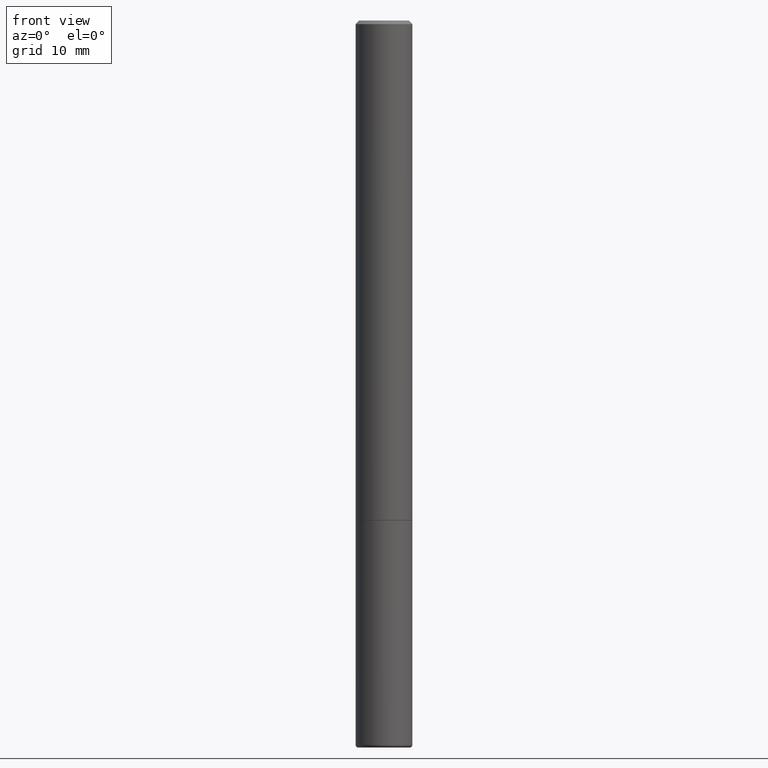
[diagram: clean part render]
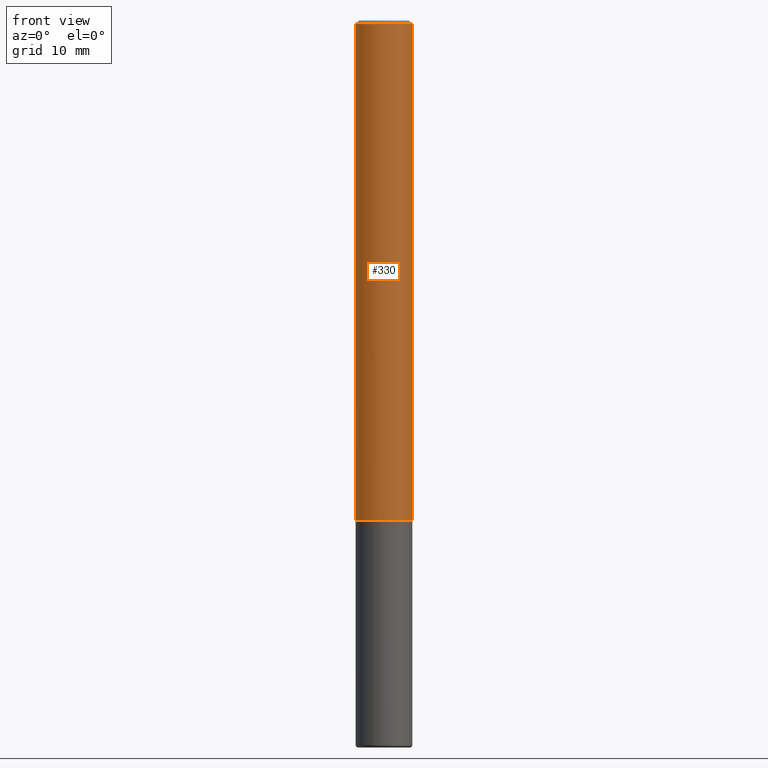
[diagram: same view with one face highlighted and labeled with its STEP entity id]
A machine part, front view. The second image highlights one B-rep face of the part: STEP entity #330.
In plain terms, the highlighted cylindrical surface (edge-blend (fillet) strip) has radius 3.9687 mm, axis along (-0, 0, 1).
Its self-contained STEP definition (entity closure, byte-faithful):
#21 = CARTESIAN_POINT ( 'NONE',  ( 0.000000000000000000, 0.000000000000000000, 0.000000000000000000 ) ) ;
#75 = FACE_OUTER_BOUND ( 'NONE', #290, .T. ) ;
#83 = DIRECTION ( 'NONE',  ( 1.000000000000000000, -6.982962677686262766E-15, 0.000000000000000000 ) ) ;
#91 = DIRECTION ( 'NONE',  ( -2.445468806185136877E-29, 3.491481338843145188E-15, 1.000000000000000000 ) ) ;
#106 = VERTEX_POINT ( 'NONE', #273 ) ;
#112 = CARTESIAN_POINT ( 'NONE',  ( 6.722593748202942280E-29, -9.598082200479810007E-15, -2.749000000000000554 ) ) ;
#125 = CARTESIAN_POINT ( 'NONE',  ( -0.1562499999999998057, 1.021258291611614692E-15, -0.02000000000000002470 ) ) ;
#136 = EDGE_CURVE ( 'NONE', #335, #106, #381, .T. ) ;
#137 = EDGE_CURVE ( 'NONE', #231, #335, #431, .T. ) ;
#150 = ORIENTED_EDGE ( 'NONE', *, *, #390, .F. ) ;
#154 = AXIS2_PLACEMENT_3D ( 'NONE', #257, #393, #366 ) ;
#161 = CARTESIAN_POINT ( 'NONE',  ( -0.1562499999999999167, 1.110223024625155949E-15, -7.685836078523285555E-30 ) ) ;
#192 = CYLINDRICAL_SURFACE ( 'NONE', #230, 0.1562499999999999167 ) ;
#194 = AXIS2_PLACEMENT_3D ( 'NONE', #112, #244, #83 ) ;
#221 = DIRECTION ( 'NONE',  ( 1.000000000000000000, -6.982962677686265133E-15, 4.876176775795935232E-29 ) ) ;
#226 = LINE ( 'NONE', #161, #318 ) ;
#230 = AXIS2_PLACEMENT_3D ( 'NONE', #21, #392, #221 ) ;
#231 = VERTEX_POINT ( 'NONE', #285 ) ;
#244 = DIRECTION ( 'NONE',  ( -2.445468806185136597E-29, 3.491481338843145583E-15, 1.000000000000000000 ) ) ;
#257 = CARTESIAN_POINT ( 'NONE',  ( 4.890937612370279289E-31, -6.982962677686299005E-17, -0.02000000000000002470 ) ) ;
#267 = ORIENTED_EDGE ( 'NONE', *, *, #403, .F. ) ;
#273 = CARTESIAN_POINT ( 'NONE',  ( 0.1562499999999998057, -1.141782438928663330E-15, -0.02000000000000002470 ) ) ;
#285 = CARTESIAN_POINT ( 'NONE',  ( -0.1562500000000000000, -3.723732889003176957E-15, -2.749000000000000554 ) ) ;
#290 = EDGE_LOOP ( 'NONE', ( #150, #357, #429, #267 ) ) ;
#318 = VECTOR ( 'NONE', #91, 39.37007874015748143 ) ;
#320 = VECTOR ( 'NONE', #416, 39.37007874015748143 ) ;
#330 = ADVANCED_FACE ( 'NONE', ( #75 ), #192, .T. ) ;
#335 = VERTEX_POINT ( 'NONE', #361 ) ;
#351 = CARTESIAN_POINT ( 'NONE',  ( 0.1562499999999999167, -1.091087918388478385E-15, 7.619026212181144772E-30 ) ) ;
#352 = VERTEX_POINT ( 'NONE', #125 ) ;
#357 = ORIENTED_EDGE ( 'NONE', *, *, #137, .T. ) ;
#361 = CARTESIAN_POINT ( 'NONE',  ( 0.1562500000000000000, -1.068917011886828839E-14, -2.749000000000000554 ) ) ;
#366 = DIRECTION ( 'NONE',  ( 1.000000000000000000, -6.982962677686266711E-15, 0.000000000000000000 ) ) ;
#373 = CIRCLE ( 'NONE', #154, 0.1562499999999998057 ) ;
#381 = LINE ( 'NONE', #351, #320 ) ;
#390 = EDGE_CURVE ( 'NONE', #231, #352, #226, .T. ) ;
#392 = DIRECTION ( 'NONE',  ( -2.445468806185136597E-29, 3.491481338843145583E-15, 1.000000000000000000 ) ) ;
#393 = DIRECTION ( 'NONE',  ( -2.445468806185136597E-29, 3.491481338843145583E-15, 1.000000000000000000 ) ) ;
#403 = EDGE_CURVE ( 'NONE', #352, #106, #373, .T. ) ;
#416 = DIRECTION ( 'NONE',  ( -2.445468806185136877E-29, 3.491481338843145188E-15, 1.000000000000000000 ) ) ;
#429 = ORIENTED_EDGE ( 'NONE', *, *, #136, .T. ) ;
#431 = CIRCLE ( 'NONE', #194, 0.1562500000000000000 ) ;